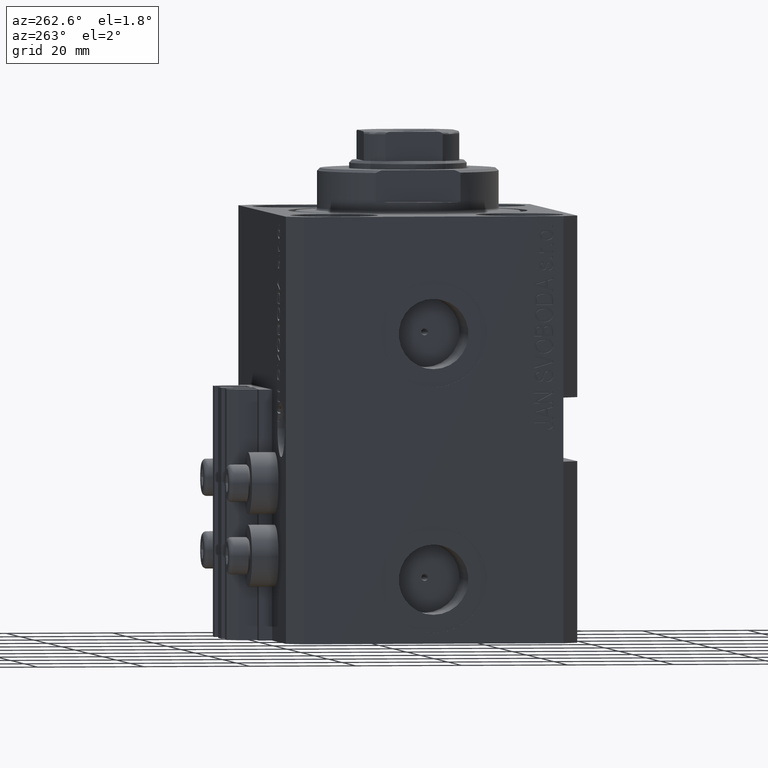
[diagram: clean part render]
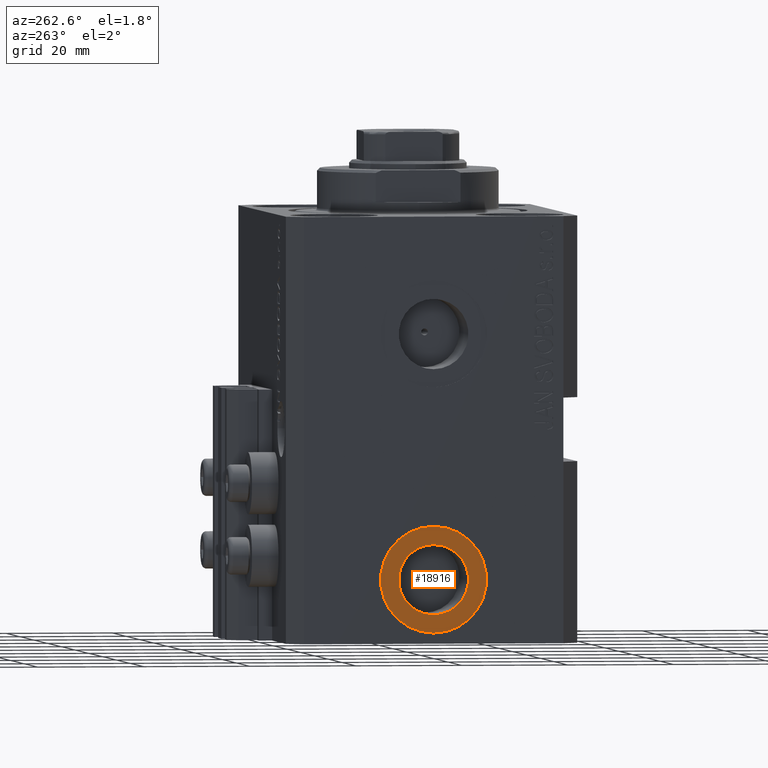
[diagram: same view with one face highlighted and labeled with its STEP entity id]
A machine part, auxiliary view. The second image highlights one B-rep face of the part: STEP entity #18916.
In plain terms, the highlighted planar face has unit normal (-1, 0, 0).
Its self-contained STEP definition (entity closure, byte-faithful):
#125 = AXIS2_PLACEMENT_3D ( 'NONE', #29105, #43098, #3085 ) ;
#2155 = ORIENTED_EDGE ( 'NONE', *, *, #15421, .F. ) ;
#2565 = ORIENTED_EDGE ( 'NONE', *, *, #3914, .T. ) ;
#2791 = DIRECTION ( 'NONE',  ( 0.000000000000000000, 0.000000000000000000, 1.000000000000000000 ) ) ;
#3085 = DIRECTION ( 'NONE',  ( 0.000000000000000000, 0.000000000000000000, 1.000000000000000000 ) ) ;
#3914 = EDGE_CURVE ( 'NONE', #10182, #5831, #28054, .T. ) ;
#4661 = DIRECTION ( 'NONE',  ( 0.000000000000000000, 0.000000000000000000, 1.000000000000000000 ) ) ;
#5831 = VERTEX_POINT ( 'NONE', #28223 ) ;
#6330 = CARTESIAN_POINT ( 'NONE',  ( -37.39999999999999147, -8.327598234202001119E-15, -68.00000000000000000 ) ) ;
#7157 = ORIENTED_EDGE ( 'NONE', *, *, #41516, .F. ) ;
#8607 = EDGE_LOOP ( 'NONE', ( #27008, #2565 ) ) ;
#9427 = FACE_OUTER_BOUND ( 'NONE', #8607, .T. ) ;
#10182 = VERTEX_POINT ( 'NONE', #13547 ) ;
#11301 = DIRECTION ( 'NONE',  ( -1.000000000000000000, 0.000000000000000000, 0.000000000000000000 ) ) ;
#11705 = EDGE_CURVE ( 'NONE', #5831, #10182, #44150, .T. ) ;
#11759 = CIRCLE ( 'NONE', #14817, 6.580000000000002736 ) ;
#11788 = AXIS2_PLACEMENT_3D ( 'NONE', #6330, #42087, #2791 ) ;
#13547 = CARTESIAN_POINT ( 'NONE',  ( -37.39999999999999147, -7.102951435054649637E-15, -78.00000000000000000 ) ) ;
#14817 = AXIS2_PLACEMENT_3D ( 'NONE', #24539, #39428, #45615 ) ;
#15421 = EDGE_CURVE ( 'NONE', #33219, #38791, #11759, .T. ) ;
#18916 = ADVANCED_FACE ( 'NONE', ( #46343, #9427 ), #27650, .T. ) ;
#22200 = CARTESIAN_POINT ( 'NONE',  ( -37.39999999999999147, -8.327598234202001119E-15, -68.00000000000000000 ) ) ;
#24539 = CARTESIAN_POINT ( 'NONE',  ( -37.39999999999999147, -8.327598234202001119E-15, -68.00000000000000000 ) ) ;
#26368 = CIRCLE ( 'NONE', #36942, 6.580000000000002736 ) ;
#27008 = ORIENTED_EDGE ( 'NONE', *, *, #11705, .T. ) ;
#27506 = DIRECTION ( 'NONE',  ( 0.000000000000000000, 0.000000000000000000, 1.000000000000000000 ) ) ;
#27650 = PLANE ( 'NONE',  #11788 ) ;
#27839 = CARTESIAN_POINT ( 'NONE',  ( -37.39999999999999147, -7.521780640363043654E-15, -74.58000000000001251 ) ) ;
#28054 = CIRCLE ( 'NONE', #125, 9.999999999999994671 ) ;
#28223 = CARTESIAN_POINT ( 'NONE',  ( -37.39999999999999147, -8.327598234202001119E-15, -58.00000000000000711 ) ) ;
#28264 = AXIS2_PLACEMENT_3D ( 'NONE', #22200, #11301, #4661 ) ;
#29105 = CARTESIAN_POINT ( 'NONE',  ( -37.39999999999999147, -8.327598234202001119E-15, -68.00000000000000000 ) ) ;
#33219 = VERTEX_POINT ( 'NONE', #27839 ) ;
#36942 = AXIS2_PLACEMENT_3D ( 'NONE', #45503, #38841, #27506 ) ;
#37193 = EDGE_LOOP ( 'NONE', ( #7157, #2155 ) ) ;
#38791 = VERTEX_POINT ( 'NONE', #40643 ) ;
#38841 = DIRECTION ( 'NONE',  ( -1.000000000000000000, 0.000000000000000000, 0.000000000000000000 ) ) ;
#39428 = DIRECTION ( 'NONE',  ( -1.000000000000000000, 0.000000000000000000, 0.000000000000000000 ) ) ;
#40643 = CARTESIAN_POINT ( 'NONE',  ( -37.39999999999999147, -8.327598234202001119E-15, -61.42000000000000171 ) ) ;
#41516 = EDGE_CURVE ( 'NONE', #38791, #33219, #26368, .T. ) ;
#42087 = DIRECTION ( 'NONE',  ( -1.000000000000000000, 0.000000000000000000, 0.000000000000000000 ) ) ;
#43098 = DIRECTION ( 'NONE',  ( -1.000000000000000000, 0.000000000000000000, 0.000000000000000000 ) ) ;
#44150 = CIRCLE ( 'NONE', #28264, 9.999999999999994671 ) ;
#45503 = CARTESIAN_POINT ( 'NONE',  ( -37.39999999999999147, -8.327598234202001119E-15, -68.00000000000000000 ) ) ;
#45615 = DIRECTION ( 'NONE',  ( 0.000000000000000000, 0.000000000000000000, 1.000000000000000000 ) ) ;
#46343 = FACE_BOUND ( 'NONE', #37193, .T. ) ;